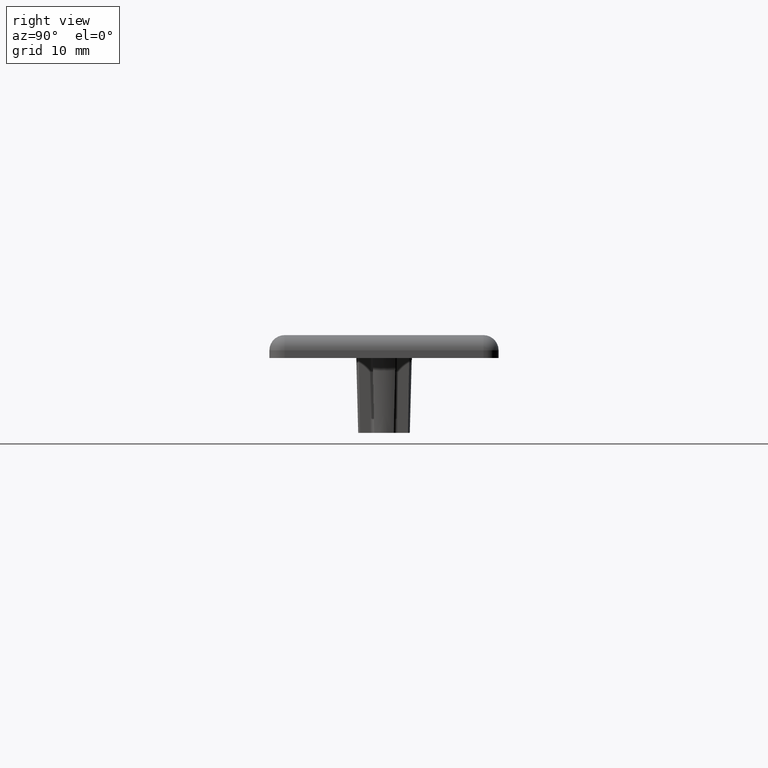
[diagram: clean part render]
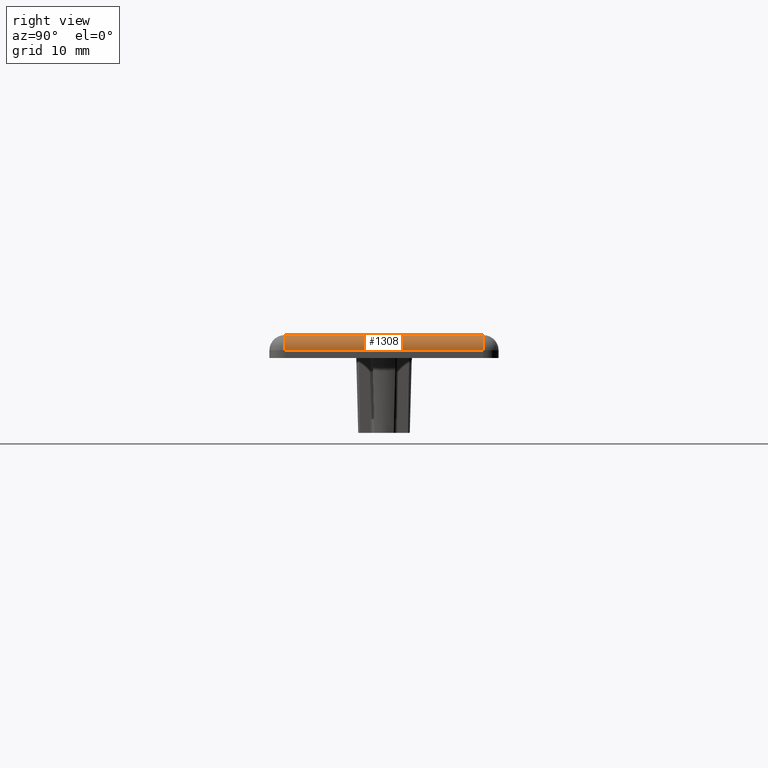
[diagram: same view with one face highlighted and labeled with its STEP entity id]
A machine part, right view. The second image highlights one B-rep face of the part: STEP entity #1308.
In plain terms, the highlighted cylindrical surface (edge-blend (fillet) strip) has radius 2 mm, axis along (0, 1, 0).
Its self-contained STEP definition (entity closure, byte-faithful):
#21=CYLINDRICAL_SURFACE('',#1448,2.);
#160=FACE_OUTER_BOUND('',#237,.T.);
#237=EDGE_LOOP('',(#1181,#1182,#1183,#1184));
#319=LINE('',#2184,#423);
#343=LINE('',#2264,#447);
#423=VECTOR('',#1731,26.);
#447=VECTOR('',#1819,26.);
#507=CIRCLE('',#1431,2.);
#513=CIRCLE('',#1442,2.);
#615=VERTEX_POINT('',#2181);
#616=VERTEX_POINT('',#2183);
#630=VERTEX_POINT('',#2226);
#637=VERTEX_POINT('',#2250);
#787=EDGE_CURVE('',#616,#615,#319,.T.);
#809=EDGE_CURVE('',#615,#630,#507,.F.);
#820=EDGE_CURVE('',#637,#616,#513,.F.);
#827=EDGE_CURVE('',#630,#637,#343,.T.);
#1181=ORIENTED_EDGE('',*,*,#820,.T.);
#1182=ORIENTED_EDGE('',*,*,#787,.T.);
#1183=ORIENTED_EDGE('',*,*,#809,.T.);
#1184=ORIENTED_EDGE('',*,*,#827,.T.);
#1308=ADVANCED_FACE('',(#160),#21,.T.);
#1431=AXIS2_PLACEMENT_3D('',#2228,#1775,#1776);
#1442=AXIS2_PLACEMENT_3D('',#2251,#1802,#1803);
#1448=AXIS2_PLACEMENT_3D('',#2263,#1817,#1818);
#1731=DIRECTION('',(0.,-1.,0.));
#1775=DIRECTION('center_axis',(0.,-1.,0.));
#1776=DIRECTION('ref_axis',(0.,0.,1.));
#1802=DIRECTION('center_axis',(0.,1.,0.));
#1803=DIRECTION('ref_axis',(1.,0.,0.));
#1817=DIRECTION('center_axis',(0.,1.,0.));
#1818=DIRECTION('ref_axis',(0.707106781186546,0.,0.707106781186549));
#1819=DIRECTION('',(0.,1.,0.));
#2181=CARTESIAN_POINT('',(43.,-13.,3.));
#2183=CARTESIAN_POINT('',(43.,13.,3.));
#2184=CARTESIAN_POINT('',(43.,-7.5,3.));
#2226=CARTESIAN_POINT('',(45.,-13.,1.));
#2228=CARTESIAN_POINT('Origin',(43.,-13.,1.));
#2250=CARTESIAN_POINT('',(45.,13.,1.));
#2251=CARTESIAN_POINT('Origin',(43.,13.,1.));
#2263=CARTESIAN_POINT('Origin',(43.,-7.5,1.));
#2264=CARTESIAN_POINT('',(45.,-7.5,1.));